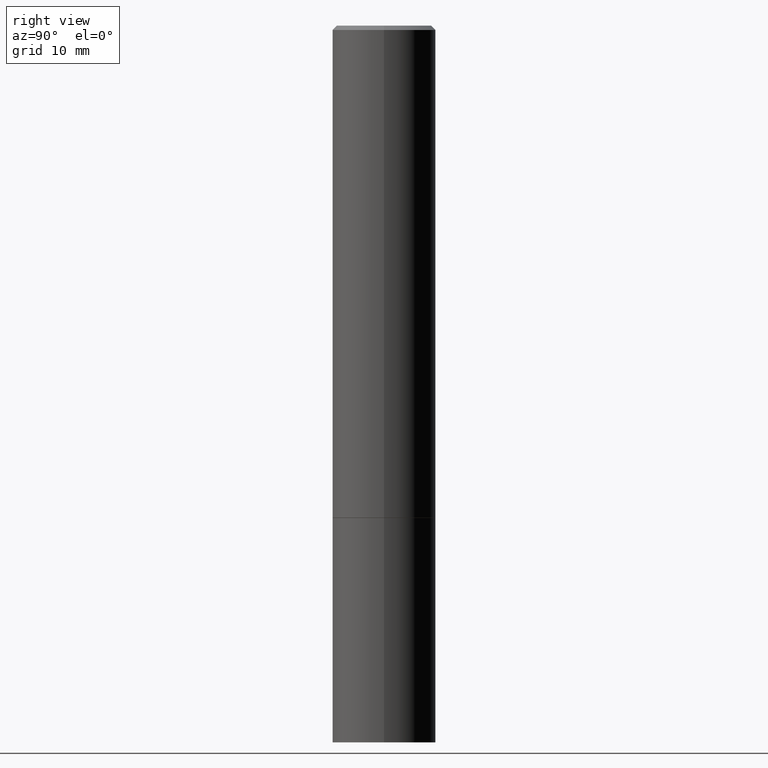
[diagram: clean part render]
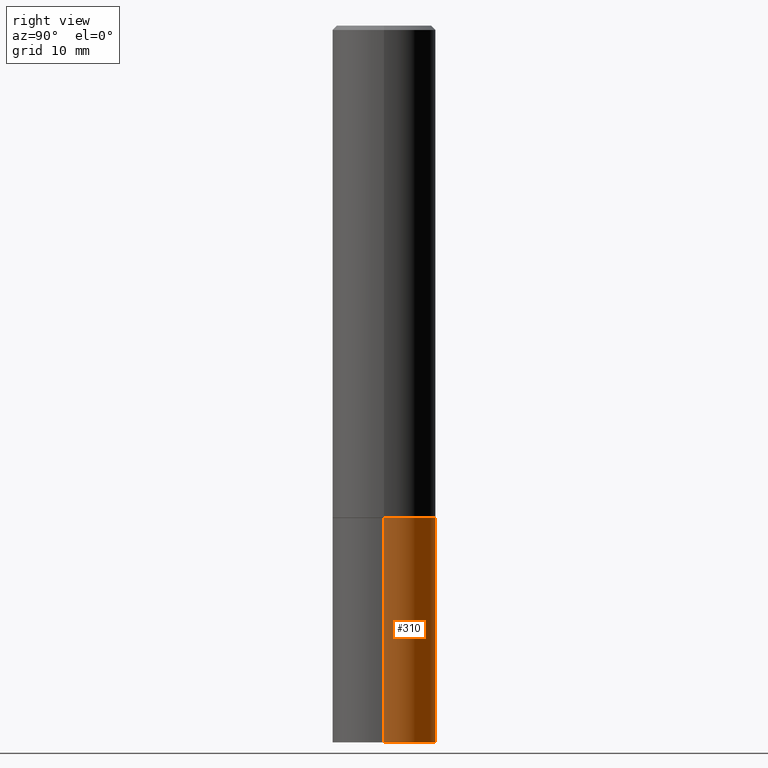
[diagram: same view with one face highlighted and labeled with its STEP entity id]
A machine part, right view. The second image highlights one B-rep face of the part: STEP entity #310.
In plain terms, the highlighted cylindrical surface (partial cylindrical patch) has radius 5.9995 mm, axis along (-0, 0, 1).
Its self-contained STEP definition (entity closure, byte-faithful):
#13 = CIRCLE ( 'NONE', #361, 0.2361999999999999933 ) ;
#20 = CARTESIAN_POINT ( 'NONE',  ( -0.2361999999999999933, 1.678301941865356591E-15, -1.161852468318208757E-29 ) ) ;
#32 = EDGE_CURVE ( 'NONE', #190, #290, #13, .T. ) ;
#44 = DIRECTION ( 'NONE',  ( -2.445468806185136877E-29, 3.491481338843145188E-15, 1.000000000000000000 ) ) ;
#50 = CARTESIAN_POINT ( 'NONE',  ( 0.2361999999999999933, -1.649375784469496131E-15, 1.151752954443000088E-29 ) ) ;
#51 = EDGE_CURVE ( 'NONE', #190, #67, #294, .T. ) ;
#57 = EDGE_CURVE ( 'NONE', #67, #106, #222, .T. ) ;
#67 = VERTEX_POINT ( 'NONE', #99 ) ;
#72 = CARTESIAN_POINT ( 'NONE',  ( -0.2361999999999999933, -7.943871479852467996E-15, -2.244100000000000428 ) ) ;
#77 = AXIS2_PLACEMENT_3D ( 'NONE', #136, #276, #157 ) ;
#99 = CARTESIAN_POINT ( 'NONE',  ( 0.2361999999999999933, -9.484609056967400443E-15, -2.244100000000000428 ) ) ;
#106 = VERTEX_POINT ( 'NONE', #72 ) ;
#119 = ORIENTED_EDGE ( 'NONE', *, *, #32, .T. ) ;
#122 = VECTOR ( 'NONE', #44, 39.37007874015748143 ) ;
#128 = LINE ( 'NONE', #20, #122 ) ;
#136 = CARTESIAN_POINT ( 'NONE',  ( 0.000000000000000000, 0.000000000000000000, 0.000000000000000000 ) ) ;
#138 = EDGE_CURVE ( 'NONE', #290, #106, #128, .T. ) ;
#157 = DIRECTION ( 'NONE',  ( 1.000000000000000000, -6.982962677686266711E-15, 4.876176775795936353E-29 ) ) ;
#162 = DIRECTION ( 'NONE',  ( 1.000000000000000000, -6.982962677686269077E-15, 0.000000000000000000 ) ) ;
#190 = VERTEX_POINT ( 'NONE', #234 ) ;
#191 = DIRECTION ( 'NONE',  ( 1.000000000000000000, -6.982962677686265133E-15, 0.000000000000000000 ) ) ;
#203 = AXIS2_PLACEMENT_3D ( 'NONE', #327, #212, #162 ) ;
#212 = DIRECTION ( 'NONE',  ( -2.445468806185136597E-29, 3.491481338843145583E-15, 1.000000000000000000 ) ) ;
#217 = CARTESIAN_POINT ( 'NONE',  ( 7.991058417971171713E-29, -1.140911357093774644E-14, -3.267700000000000049 ) ) ;
#220 = FACE_OUTER_BOUND ( 'NONE', #226, .T. ) ;
#222 = CIRCLE ( 'NONE', #203, 0.2361999999999999933 ) ;
#226 = EDGE_LOOP ( 'NONE', ( #119, #231, #284, #264 ) ) ;
#231 = ORIENTED_EDGE ( 'NONE', *, *, #138, .T. ) ;
#234 = CARTESIAN_POINT ( 'NONE',  ( 0.2361999999999999933, -1.305848935540724297E-14, -3.267700000000000049 ) ) ;
#264 = ORIENTED_EDGE ( 'NONE', *, *, #51, .F. ) ;
#273 = CARTESIAN_POINT ( 'NONE',  ( -0.2361999999999999933, -7.943871479852467996E-15, -3.267700000000000049 ) ) ;
#276 = DIRECTION ( 'NONE',  ( -2.445468806185136597E-29, 3.491481338843145583E-15, 1.000000000000000000 ) ) ;
#284 = ORIENTED_EDGE ( 'NONE', *, *, #57, .F. ) ;
#290 = VERTEX_POINT ( 'NONE', #273 ) ;
#294 = LINE ( 'NONE', #50, #345 ) ;
#310 = ADVANCED_FACE ( 'NONE', ( #220 ), #348, .T. ) ;
#327 = CARTESIAN_POINT ( 'NONE',  ( 5.487876547960065873E-29, -7.835233272497903917E-15, -2.244100000000000428 ) ) ;
#345 = VECTOR ( 'NONE', #347, 39.37007874015748143 ) ;
#347 = DIRECTION ( 'NONE',  ( -2.445468806185136877E-29, 3.491481338843145188E-15, 1.000000000000000000 ) ) ;
#348 = CYLINDRICAL_SURFACE ( 'NONE', #77, 0.2361999999999999933 ) ;
#349 = DIRECTION ( 'NONE',  ( -2.445468806185136597E-29, 3.491481338843145583E-15, 1.000000000000000000 ) ) ;
#361 = AXIS2_PLACEMENT_3D ( 'NONE', #217, #349, #191 ) ;